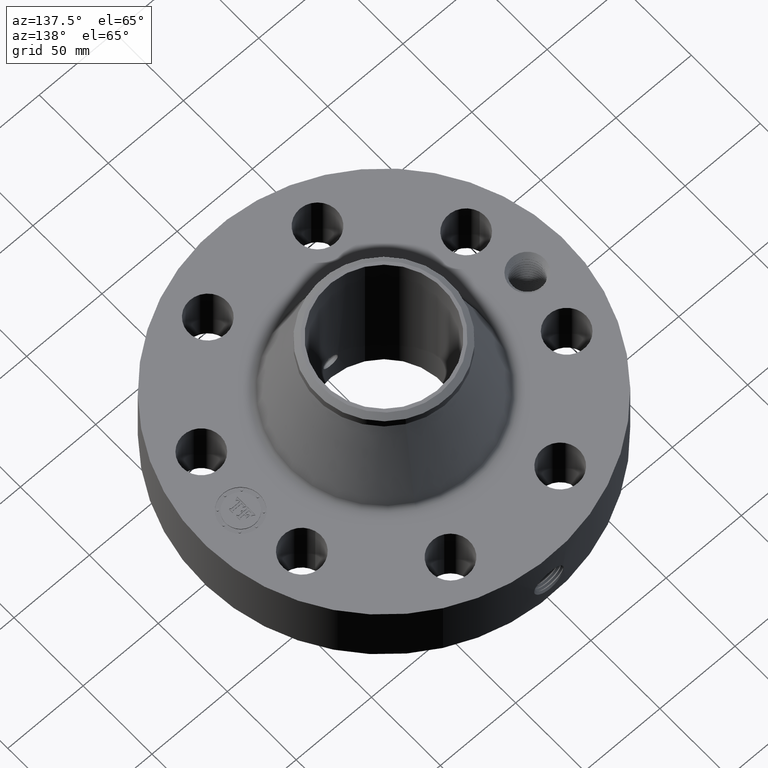
[diagram: clean part render]
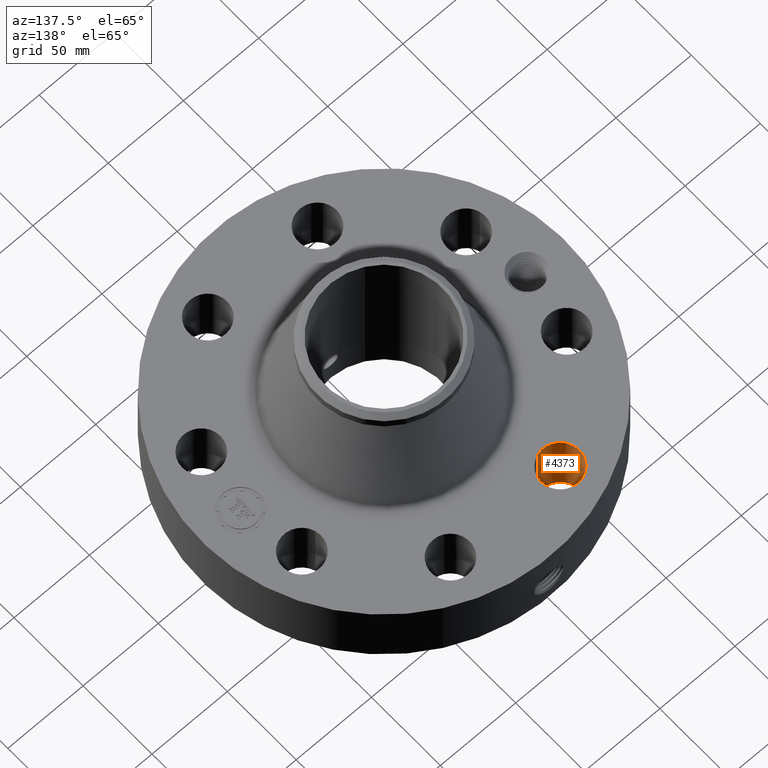
[diagram: same view with one face highlighted and labeled with its STEP entity id]
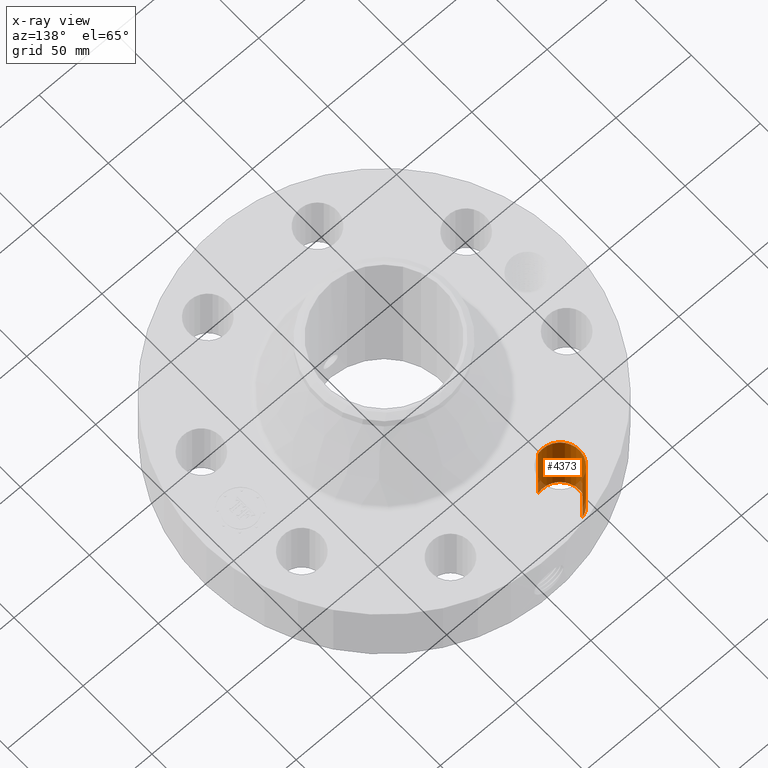
[diagram: x-ray of the same camera — body ghosted, the highlighted face saturated]
A machine part, auxiliary view. The second image highlights one B-rep face of the part: STEP entity #4373.
The next image is the same camera in x-ray: the body ghosted, the highlighted face saturated — about 7% of this face is hidden behind the body in this view.
In plain terms, the highlighted cylindrical surface (edge-blend (fillet) strip) has radius 12.7 mm, axis along (0, 0, -1).
Its self-contained STEP definition (entity closure, byte-faithful):
#3057=AXIS2_PLACEMENT_3D('Circle Axis2P3D',#3055,#3056,$) ;
#4346=AXIS2_PLACEMENT_3D('Cylinder Axis2P3D',#4343,#4344,#4345) ;
#4357=AXIS2_PLACEMENT_3D('Circle Axis2P3D',#4355,#4356,$) ;
#3050=CARTESIAN_POINT('Vertex',(-1.57583263695,3.94432306193,1.81200000001)) ;
#3052=CARTESIAN_POINT('Vertex',(-1.2942931058,2.98477343194,1.81200000001)) ;
#3055=CARTESIAN_POINT('Axis2P3D Location',(-1.43506287137,3.46454824693,1.81200000001)) ;
#4343=CARTESIAN_POINT('Axis2P3D Location',(-1.43506287137,3.46454824693,1.80806299213)) ;
#4348=CARTESIAN_POINT('Line Origine',(-1.2942931058,2.98477343194,0.906000000004)) ;
#4352=CARTESIAN_POINT('Vertex',(-1.2942931058,2.98477343194,0.)) ;
#4355=CARTESIAN_POINT('Axis2P3D Location',(-1.43506287137,3.46454824693,0.)) ;
#4359=CARTESIAN_POINT('Vertex',(-1.57583263695,3.94432306193,0.)) ;
#4362=CARTESIAN_POINT('Line Origine',(-1.57583263695,3.94432306193,0.906000000004)) ;
#3056=DIRECTION('Axis2P3D Direction',(0.,0.,-0.0393700787402)) ;
#4344=DIRECTION('Axis2P3D Direction',(0.,0.,-0.0393700787402)) ;
#4345=DIRECTION('Axis2P3D XDirection',(-0.0110842335096,0.0377775444876,0.)) ;
#4349=DIRECTION('Vector Direction',(0.,0.,-0.0393700787402)) ;
#4356=DIRECTION('Axis2P3D Direction',(0.,0.,-0.0393700787402)) ;
#4363=DIRECTION('Vector Direction',(0.,0.,-0.0393700787402)) ;
#4350=VECTOR('Line Direction',#4349,0.0393700787402) ;
#4364=VECTOR('Line Direction',#4363,0.0393700787402) ;
#4368=ORIENTED_EDGE('',*,*,#4354,.F.) ;
#4369=ORIENTED_EDGE('',*,*,#4361,.T.) ;
#4370=ORIENTED_EDGE('',*,*,#4366,.T.) ;
#4371=ORIENTED_EDGE('',*,*,#3059,.F.) ;
#4373=ADVANCED_FACE('PartBody',(#4372),#4347,.F.) ;
#3058=CIRCLE('generated circle',#3057,0.500000000002) ;
#4358=CIRCLE('generated circle',#4357,0.500000000002) ;
#4347=CYLINDRICAL_SURFACE('generated cylinder',#4346,0.500000000002) ;
#3059=EDGE_CURVE('',#3053,#3051,#3058,.T.) ;
#4354=EDGE_CURVE('',#4353,#3053,#4351,.F.) ;
#4361=EDGE_CURVE('',#4353,#4360,#4358,.T.) ;
#4366=EDGE_CURVE('',#4360,#3051,#4365,.F.) ;
#4367=EDGE_LOOP('',(#4368,#4369,#4370,#4371)) ;
#4372=FACE_OUTER_BOUND('',#4367,.T.) ;
#4351=LINE('Line',#4348,#4350) ;
#4365=LINE('Line',#4362,#4364) ;
#3051=VERTEX_POINT('',#3050) ;
#3053=VERTEX_POINT('',#3052) ;
#4353=VERTEX_POINT('',#4352) ;
#4360=VERTEX_POINT('',#4359) ;